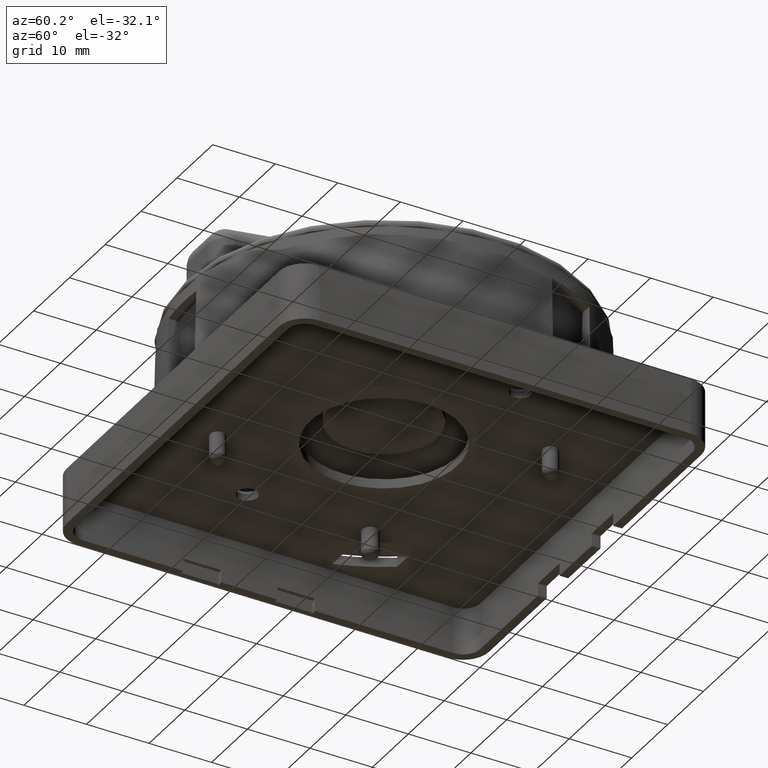
[diagram: clean part render]
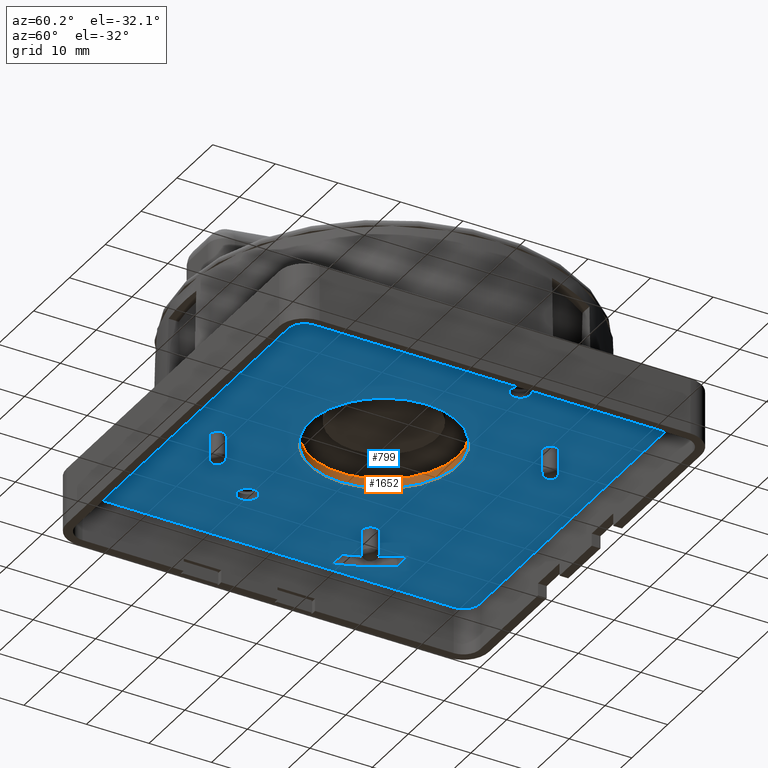
[diagram: same view with the hole feature highlighted: cylindrical wall and planar end face, labeled with their STEP entity ids]
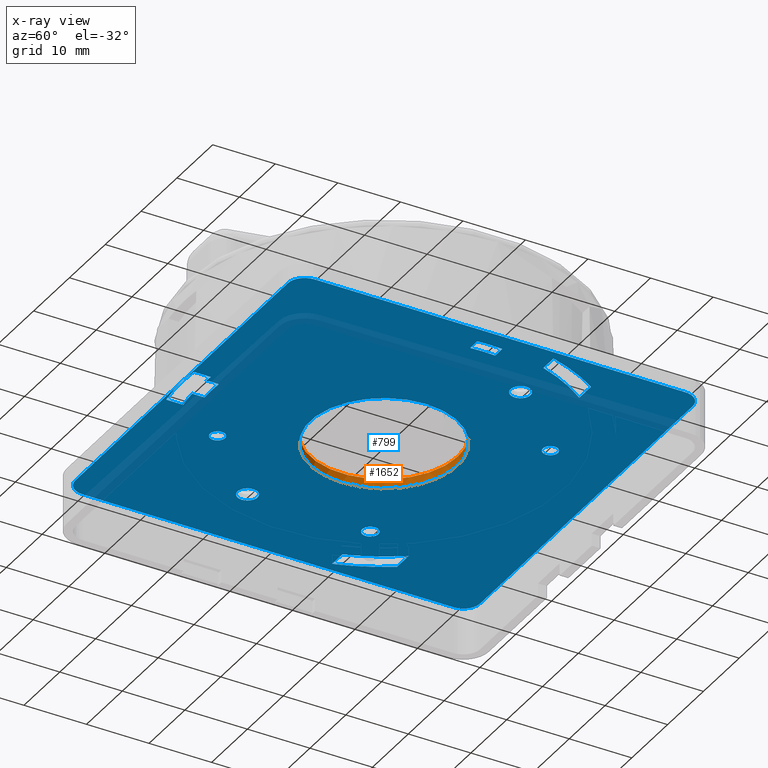
[diagram: x-ray of the same camera — body ghosted, the hole faces saturated]
A machine part, auxiliary view. The highlighted faces form one hole feature of diameter 23.6 mm: the cylindrical wall (entity #1652, orange) and its adjacent planar end face (entity #799, blue) — they share a circular edge in the B-rep.
The next image is the same camera in x-ray (body ghosted, the hole faces saturated) — the bore reads through the body.
Wall:
#788=CARTESIAN_POINT('',(123.48807423814603,116.51422582001801,57.5));
#789=VERTEX_POINT('',#788);
#790=CARTESIAN_POINT('',(111.68807423814602,116.51422582001801,57.5));
#791=DIRECTION('',(0.0,0.0,1.0));
#792=DIRECTION('',(1.0,0.0,0.0));
#793=AXIS2_PLACEMENT_3D('',#790,#791,#792);
#794=CIRCLE('',#793,11.800000000000001);
#795=EDGE_CURVE('',#789,#789,#794,.T.);
#886=CARTESIAN_POINT('',(111.68807423814602,128.31422582001801,59.0));
#887=VERTEX_POINT('',#886);
#888=CARTESIAN_POINT('',(111.68807423814602,116.51422582001801,59.0));
#889=DIRECTION('',(0.0,0.0,1.0));
#890=DIRECTION('',(0.0,1.0,0.0));
#891=AXIS2_PLACEMENT_3D('',#888,#889,#890);
#892=CIRCLE('',#891,11.800000000000001);
#893=EDGE_CURVE('',#887,#887,#892,.T.);
#1641=CARTESIAN_POINT('',(111.68807423814602,116.51422582001801,54.0));
#1642=DIRECTION('',(0.0,0.0,1.0));
#1643=DIRECTION('',(1.0,0.0,0.0));
#1644=AXIS2_PLACEMENT_3D('',#1641,#1642,#1643);
#1645=CYLINDRICAL_SURFACE('',#1644,11.800000000000001);
#1646=ORIENTED_EDGE('',*,*,#893,.T.);
#1647=EDGE_LOOP('',(#1646));
#1648=FACE_OUTER_BOUND('',#1647,.T.);
#1649=ORIENTED_EDGE('',*,*,#795,.F.);
#1650=EDGE_LOOP('',(#1649));
#1651=FACE_BOUND('',#1650,.T.);
#1652=ADVANCED_FACE('',(#1648,#1651),#1645,.F.);
End face:
#131=CARTESIAN_POINT('',(79.338074238147499,146.16422533444398,57.5));
#132=VERTEX_POINT('',#131);
#139=CARTESIAN_POINT('',(79.338074238145992,86.864226305594087,57.5));
#140=VERTEX_POINT('',#139);
#141=CARTESIAN_POINT('',(79.338074238146206,86.864226305594087,57.5));
#142=DIRECTION('',(0.0,1.0,0.0));
#143=VECTOR('',#142,59.299999028849896);
#144=LINE('',#141,#143);
#145=EDGE_CURVE('',#140,#132,#144,.T.);
#489=CARTESIAN_POINT('',(82.038074723723525,146.16422533444398,57.5));
#490=DIRECTION('',(0.0,0.0,1.0));
#491=DIRECTION('',(1.0,0.0,0.0));
#492=AXIS2_PLACEMENT_3D('',#489,#490,#491);
#493=PLANE('',#492);
#494=CARTESIAN_POINT('',(82.038074723722204,148.86422582001802,57.5));
#495=VERTEX_POINT('',#494);
#496=CARTESIAN_POINT('',(141.33807375256998,148.86422582001802,57.5));
#497=VERTEX_POINT('',#496);
#498=CARTESIAN_POINT('',(82.038074723722204,148.86422582001802,57.5));
#499=DIRECTION('',(1.0,0.0,0.0));
#500=VECTOR('',#499,59.299999028847779);
#501=LINE('',#498,#500);
#502=EDGE_CURVE('',#495,#497,#501,.T.);
#503=ORIENTED_EDGE('',*,*,#502,.T.);
#504=CARTESIAN_POINT('',(144.03807423814601,146.16422533444199,57.5));
#505=VERTEX_POINT('',#504);
#506=CARTESIAN_POINT('',(141.338073752572,146.16422533444302,57.5));
#507=DIRECTION('',(0.0,0.0,-1.0));
#508=DIRECTION('',(1.0,0.0,0.0));
#509=AXIS2_PLACEMENT_3D('',#506,#507,#508);
#510=CIRCLE('',#509,2.70000048557599);
#511=EDGE_CURVE('',#497,#505,#510,.T.);
#512=ORIENTED_EDGE('',*,*,#511,.T.);
#513=CARTESIAN_POINT('',(144.038074238147,86.8642263055944,57.5));
#514=VERTEX_POINT('',#513);
#515=CARTESIAN_POINT('',(144.03807423814601,146.16422533444199,57.5));
#516=DIRECTION('',(0.0,-1.0,0.0));
#517=VECTOR('',#516,59.299999028847608);
#518=LINE('',#515,#517);
#519=EDGE_CURVE('',#505,#514,#518,.T.);
#520=ORIENTED_EDGE('',*,*,#519,.T.);
#521=CARTESIAN_POINT('',(141.33807375256998,84.164225820017919,57.5));
#522=VERTEX_POINT('',#521);
#523=CARTESIAN_POINT('',(141.33807375256998,86.864226305594485,57.5));
#524=DIRECTION('',(0.0,0.0,-1.0));
#525=DIRECTION('',(0.0,-1.0,0.0));
#526=AXIS2_PLACEMENT_3D('',#523,#524,#525);
#527=CIRCLE('',#526,2.70000048557612);
#528=EDGE_CURVE('',#514,#522,#527,.T.);
#529=ORIENTED_EDGE('',*,*,#528,.T.);
#530=CARTESIAN_POINT('',(82.038074723721394,84.164225820016497,57.5));
#531=VERTEX_POINT('',#530);
#532=CARTESIAN_POINT('',(141.33807375256998,84.164225820017919,57.5));
#533=DIRECTION('',(-1.0,0.0,0.0));
#534=VECTOR('',#533,59.299999028848603);
#535=LINE('',#532,#534);
#536=EDGE_CURVE('',#522,#531,#535,.T.);
#537=ORIENTED_EDGE('',*,*,#536,.T.);
#538=CARTESIAN_POINT('',(82.038074723721209,86.864226305592624,57.5));
#539=DIRECTION('',(0.0,0.0,-1.0));
#540=DIRECTION('',(-1.0,0.0,0.0));
#541=AXIS2_PLACEMENT_3D('',#538,#539,#540);
#542=CIRCLE('',#541,2.70000048557606);
#543=EDGE_CURVE('',#531,#140,#542,.T.);
#544=ORIENTED_EDGE('',*,*,#543,.T.);
#545=ORIENTED_EDGE('',*,*,#145,.T.);
#546=CARTESIAN_POINT('',(82.038074723723525,146.16422533444398,57.5));
#547=DIRECTION('',(0.0,0.0,-1.0));
#548=DIRECTION('',(0.0,1.0,0.0));
#549=AXIS2_PLACEMENT_3D('',#546,#547,#548);
#550=CIRCLE('',#549,2.70000048557607);
#551=EDGE_CURVE('',#132,#495,#550,.T.);
#552=ORIENTED_EDGE('',*,*,#551,.T.);
#553=EDGE_LOOP('',(#503,#512,#520,#529,#537,#544,#545,#552));
#554=FACE_OUTER_BOUND('',#553,.T.);
#555=CARTESIAN_POINT('',(92.288074238146123,106.71422582001803,57.5));
#556=VERTEX_POINT('',#555);
#557=CARTESIAN_POINT('',(90.688074238146115,106.71422582001803,57.5));
#558=DIRECTION('',(0.0,0.0,-1.0));
#559=DIRECTION('',(1.0,0.0,0.0));
#560=AXIS2_PLACEMENT_3D('',#557,#558,#559);
#561=CIRCLE('',#560,1.6);
#562=EDGE_CURVE('',#556,#556,#561,.T.);
#563=ORIENTED_EDGE('',*,*,#562,.F.);
#564=EDGE_LOOP('',(#563));
#565=FACE_BOUND('',#564,.T.);
#566=CARTESIAN_POINT('',(142.590016001268,125.914225568354,57.5));
#567=VERTEX_POINT('',#566);
#568=CARTESIAN_POINT('',(138.77183337270304,134.11422556835501,57.5));
#569=VERTEX_POINT('',#568);
#570=CARTESIAN_POINT('',(111.688074238148,116.51422582001901,57.5));
#571=DIRECTION('',(0.0,0.0,1.0));
#572=DIRECTION('',(1.0,0.0,0.0));
#573=AXIS2_PLACEMENT_3D('',#570,#571,#572);
#574=CIRCLE('',#573,32.300000000000196);
#575=EDGE_CURVE('',#567,#569,#574,.T.);
#576=ORIENTED_EDGE('',*,*,#575,.T.);
#577=CARTESIAN_POINT('',(135.48723407328902,134.11422556835501,57.5));
#578=VERTEX_POINT('',#577);
#579=CARTESIAN_POINT('',(138.77183337270304,134.11422556835501,57.5));
#580=DIRECTION('',(-1.0,0.0,0.0));
#581=VECTOR('',#580,3.284599299413998);
#582=LINE('',#579,#581);
#583=EDGE_CURVE('',#569,#578,#582,.T.);
#584=ORIENTED_EDGE('',*,*,#583,.T.);
#585=CARTESIAN_POINT('',(139.75584943910201,125.91422556835502,57.5));
#586=VERTEX_POINT('',#585);
#587=CARTESIAN_POINT('',(111.688074238148,116.51422582001901,57.5));
#588=DIRECTION('',(0.0,0.0,-1.0));
#589=DIRECTION('',(1.0,0.0,0.0));
#590=AXIS2_PLACEMENT_3D('',#587,#588,#589);
#591=CIRCLE('',#590,29.599999999999802);
#592=EDGE_CURVE('',#578,#586,#591,.T.);
#593=ORIENTED_EDGE('',*,*,#592,.T.);
#594=CARTESIAN_POINT('',(139.75584943910201,125.91422556836001,57.5));
#595=DIRECTION('',(1.0,0.0,0.0));
#596=VECTOR('',#595,2.83416656216599);
#597=LINE('',#594,#596);
#598=EDGE_CURVE('',#586,#567,#597,.T.);
#599=ORIENTED_EDGE('',*,*,#598,.T.);
#600=EDGE_LOOP('',(#576,#584,#593,#599));
#601=FACE_BOUND('',#600,.T.);
#602=CARTESIAN_POINT('',(84.60431510359291,134.11422556835501,57.5));
#603=VERTEX_POINT('',#602);
#604=CARTESIAN_POINT('',(80.7861324750276,125.91422556835502,57.5));
#605=VERTEX_POINT('',#604);
#606=CARTESIAN_POINT('',(111.688074238148,116.51422582001901,57.5));
#607=DIRECTION('',(0.0,0.0,1.0));
#608=DIRECTION('',(1.0,0.0,0.0));
#609=AXIS2_PLACEMENT_3D('',#606,#607,#608);
#610=CIRCLE('',#609,32.299999999999898);
#611=EDGE_CURVE('',#603,#605,#610,.T.);
#612=ORIENTED_EDGE('',*,*,#611,.T.);
#613=CARTESIAN_POINT('',(83.620299037193888,125.91422556835502,57.5));
#614=VERTEX_POINT('',#613);
#615=CARTESIAN_POINT('',(80.7861324750276,125.91422556835502,57.5));
#616=DIRECTION('',(1.0,0.0,0.0));
#617=VECTOR('',#616,2.834166562166288);
#618=LINE('',#615,#617);
#619=EDGE_CURVE('',#605,#614,#618,.T.);
#620=ORIENTED_EDGE('',*,*,#619,.T.);
#621=CARTESIAN_POINT('',(87.888914403007107,134.11422556835501,57.5));
#622=VERTEX_POINT('',#621);
#623=CARTESIAN_POINT('',(111.688074238148,116.51422582001901,57.5));
#624=DIRECTION('',(0.0,0.0,-1.0));
#625=DIRECTION('',(1.0,0.0,0.0));
#626=AXIS2_PLACEMENT_3D('',#623,#624,#625);
#627=CIRCLE('',#626,29.599999999999902);
#628=EDGE_CURVE('',#614,#622,#627,.T.);
#629=ORIENTED_EDGE('',*,*,#628,.T.);
#630=CARTESIAN_POINT('',(87.888914403007107,134.11422556835501,57.5));
#631=DIRECTION('',(-1.0,0.0,0.0));
#632=VECTOR('',#631,3.284599299414197);
#633=LINE('',#630,#632);
#634=EDGE_CURVE('',#622,#603,#633,.T.);
#635=ORIENTED_EDGE('',*,*,#634,.T.);
#636=EDGE_LOOP('',(#612,#620,#629,#635));
#637=FACE_BOUND('',#636,.T.);
#638=CARTESIAN_POINT('',(101.88807423814602,96.714225820017901,57.5));
#639=VERTEX_POINT('',#638);
#640=CARTESIAN_POINT('',(101.88807423814602,95.514225820017913,57.5));
#641=DIRECTION('',(0.0,0.0,-1.0));
#642=DIRECTION('',(0.0,1.0,0.0));
#643=AXIS2_PLACEMENT_3D('',#640,#641,#642);
#644=CIRCLE('',#643,1.2);
#645=EDGE_CURVE('',#639,#639,#644,.T.);
#646=ORIENTED_EDGE('',*,*,#645,.F.);
#647=EDGE_LOOP('',(#646));
#648=FACE_BOUND('',#647,.T.);
#649=CARTESIAN_POINT('',(90.718691238438524,127.630389262622,57.5));
#650=VERTEX_POINT('',#649);
#651=CARTESIAN_POINT('',(90.718691238438524,126.33038926262201,57.5));
#652=DIRECTION('',(0.0,0.0,-1.0));
#653=DIRECTION('',(0.0,1.0,0.0));
#654=AXIS2_PLACEMENT_3D('',#651,#652,#653);
#655=CIRCLE('',#654,1.30000000000004);
#656=EDGE_CURVE('',#650,#650,#655,.T.);
#657=ORIENTED_EDGE('',*,*,#656,.F.);
#658=EDGE_LOOP('',(#657));
#659=FACE_BOUND('',#658,.T.);
#660=CARTESIAN_POINT('',(121.48807423814603,138.71422582001802,57.5));
#661=VERTEX_POINT('',#660);
#662=CARTESIAN_POINT('',(121.48807423814603,137.514225820018,57.5));
#663=DIRECTION('',(0.0,0.0,-1.0));
#664=DIRECTION('',(0.0,1.0,0.0));
#665=AXIS2_PLACEMENT_3D('',#662,#663,#664);
#666=CIRCLE('',#665,1.2);
#667=EDGE_CURVE('',#661,#661,#666,.T.);
#668=ORIENTED_EDGE('',*,*,#667,.F.);
#669=EDGE_LOOP('',(#668));
#670=FACE_BOUND('',#669,.T.);
#671=CARTESIAN_POINT('',(139.23298479249405,114.51422582001902,57.5));
#672=VERTEX_POINT('',#671);
#673=CARTESIAN_POINT('',(139.23298479249405,118.51422582001902,57.5));
#674=VERTEX_POINT('',#673);
#675=CARTESIAN_POINT('',(111.68807423814602,116.51422582001901,57.5));
#676=DIRECTION('',(0.0,0.0,1.0));
#677=DIRECTION('',(1.0,0.0,0.0));
#678=AXIS2_PLACEMENT_3D('',#675,#676,#677);
#679=CIRCLE('',#678,27.617423801777701);
#680=EDGE_CURVE('',#672,#674,#679,.T.);
#681=ORIENTED_EDGE('',*,*,#680,.F.);
#682=CARTESIAN_POINT('',(141.2204293762,114.51422582001902,57.5));
#683=VERTEX_POINT('',#682);
#684=CARTESIAN_POINT('',(141.2204293762,114.51422582001902,57.5));
#685=DIRECTION('',(-1.0,0.0,0.0));
#686=VECTOR('',#685,1.98744458370598);
#687=LINE('',#684,#686);
#688=EDGE_CURVE('',#683,#672,#687,.T.);
#689=ORIENTED_EDGE('',*,*,#688,.F.);
#690=CARTESIAN_POINT('',(141.2204293762,118.51422582001902,57.5));
#691=VERTEX_POINT('',#690);
#692=CARTESIAN_POINT('',(111.68807423815103,116.51422582001901,57.5));
#693=DIRECTION('',(0.0,0.0,-1.0));
#694=DIRECTION('',(1.0,0.0,0.0));
#695=AXIS2_PLACEMENT_3D('',#692,#693,#694);
#696=CIRCLE('',#695,29.599999999997003);
#697=EDGE_CURVE('',#691,#683,#696,.T.);
#698=ORIENTED_EDGE('',*,*,#697,.F.);
#699=CARTESIAN_POINT('',(139.23298479249405,118.51422582001902,57.5));
#700=DIRECTION('',(1.0,0.0,0.0));
#701=VECTOR('',#700,1.98744458370598);
#702=LINE('',#699,#701);
#703=EDGE_CURVE('',#674,#691,#702,.T.);
#704=ORIENTED_EDGE('',*,*,#703,.F.);
#705=EDGE_LOOP('',(#681,#689,#698,#704));
#706=FACE_BOUND('',#705,.T.);
#707=CARTESIAN_POINT('',(106.55594364666499,87.362532314489997,57.5));
#708=VERTEX_POINT('',#707);
#709=CARTESIAN_POINT('',(106.55732081327102,84.624331350248298,57.5));
#710=VERTEX_POINT('',#709);
#711=CARTESIAN_POINT('',(106.55594364666541,87.362532314489997,57.5));
#712=DIRECTION('',(0.000502945711263,-0.999999873522798,0.0));
#713=VECTOR('',#712,2.73820131056174);
#714=LINE('',#711,#713);
#715=EDGE_CURVE('',#708,#710,#714,.T.);
#716=ORIENTED_EDGE('',*,*,#715,.T.);
#717=CARTESIAN_POINT('',(114.75732674941845,84.36038172414122,57.5));
#718=VERTEX_POINT('',#717);
#719=CARTESIAN_POINT('',(111.68807430699999,116.51422583108,57.5));
#720=DIRECTION('',(0.0,0.0,1.0));
#721=DIRECTION('',(1.0,0.0,0.0));
#722=AXIS2_PLACEMENT_3D('',#719,#720,#721);
#723=CIRCLE('',#722,32.300000021857599);
#724=EDGE_CURVE('',#710,#718,#723,.T.);
#725=ORIENTED_EDGE('',*,*,#724,.T.);
#726=CARTESIAN_POINT('',(114.75732674849901,87.073782739130905,57.5));
#727=VERTEX_POINT('',#726);
#728=CARTESIAN_POINT('',(114.75732674849901,84.36038172414122,57.5));
#729=DIRECTION('',(0.0,1.0,0.0));
#730=VECTOR('',#729,2.713401014989685);
#731=LINE('',#728,#730);
#732=EDGE_CURVE('',#718,#727,#731,.T.);
#733=ORIENTED_EDGE('',*,*,#732,.T.);
#734=CARTESIAN_POINT('',(113.68807423814901,86.981870688366797,57.5));
#735=VERTEX_POINT('',#734);
#736=CARTESIAN_POINT('',(111.68807430700301,116.514225831044,57.5));
#737=DIRECTION('',(0.0,0.0,-1.0));
#738=DIRECTION('',(1.0,0.0,0.0));
#739=AXIS2_PLACEMENT_3D('',#736,#737,#738);
#740=CIRCLE('',#739,29.599999999962904);
#741=EDGE_CURVE('',#727,#735,#740,.T.);
#742=ORIENTED_EDGE('',*,*,#741,.T.);
#743=CARTESIAN_POINT('',(113.68807423814901,88.969315265672805,57.5));
#744=VERTEX_POINT('',#743);
#745=CARTESIAN_POINT('',(113.68807423814901,86.981870688366797,57.5));
#746=DIRECTION('',(0.0,1.0,0.0));
#747=VECTOR('',#746,1.987444577306007);
#748=LINE('',#745,#747);
#749=EDGE_CURVE('',#735,#744,#748,.T.);
#750=ORIENTED_EDGE('',*,*,#749,.T.);
#751=CARTESIAN_POINT('',(109.68807423802201,88.964647111358403,57.5));
#752=VERTEX_POINT('',#751);
#753=CARTESIAN_POINT('',(111.65594864524401,116.49442837991302,57.5));
#754=DIRECTION('',(0.0,0.0,-1.0));
#755=DIRECTION('',(1.0,0.0,0.0));
#756=AXIS2_PLACEMENT_3D('',#753,#754,#755);
#757=CIRCLE('',#756,27.600025115515201);
#758=EDGE_CURVE('',#744,#752,#757,.T.);
#759=ORIENTED_EDGE('',*,*,#758,.T.);
#760=CARTESIAN_POINT('',(109.68807423814802,86.981870697692315,57.5));
#761=VERTEX_POINT('',#760);
#762=CARTESIAN_POINT('',(109.68807423802215,88.964647111358403,57.5));
#763=DIRECTION('',(6.339344E-011,-1.0,0.0));
#764=VECTOR('',#763,1.982776413666088);
#765=LINE('',#762,#764);
#766=EDGE_CURVE('',#752,#761,#765,.T.);
#767=ORIENTED_EDGE('',*,*,#766,.T.);
#768=CARTESIAN_POINT('',(111.68807430699999,116.51422583107703,57.5));
#769=DIRECTION('',(0.0,0.0,-1.0));
#770=DIRECTION('',(1.0,0.0,0.0));
#771=AXIS2_PLACEMENT_3D('',#768,#769,#770);
#772=CIRCLE('',#771,29.599999999996399);
#773=EDGE_CURVE('',#761,#708,#772,.T.);
#774=ORIENTED_EDGE('',*,*,#773,.T.);
#775=EDGE_LOOP('',(#716,#725,#733,#742,#750,#759,#767,#774));
#776=FACE_BOUND('',#775,.T.);
#777=CARTESIAN_POINT('',(134.288074238147,126.31422582001902,57.5));
#778=VERTEX_POINT('',#777);
#779=CARTESIAN_POINT('',(132.68807423814701,126.31422582001902,57.5));
#780=DIRECTION('',(0.0,0.0,-1.0));
#781=DIRECTION('',(1.0,0.0,0.0));
#782=AXIS2_PLACEMENT_3D('',#779,#780,#781);
#783=CIRCLE('',#782,1.59999999999998);
#784=EDGE_CURVE('',#778,#778,#783,.T.);
#785=ORIENTED_EDGE('',*,*,#784,.F.);
#786=EDGE_LOOP('',(#785));
#787=FACE_BOUND('',#786,.T.);
#788=CARTESIAN_POINT('',(123.48807423814603,116.51422582001801,57.5));
#789=VERTEX_POINT('',#788);
#790=CARTESIAN_POINT('',(111.68807423814602,116.51422582001801,57.5));
#791=DIRECTION('',(0.0,0.0,1.0));
#792=DIRECTION('',(1.0,0.0,0.0));
#793=AXIS2_PLACEMENT_3D('',#790,#791,#792);
#794=CIRCLE('',#793,11.800000000000001);
#795=EDGE_CURVE('',#789,#789,#794,.T.);
#796=ORIENTED_EDGE('',*,*,#795,.T.);
#797=EDGE_LOOP('',(#796));
#798=FACE_BOUND('',#797,.T.);
#799=ADVANCED_FACE('',(#554,#565,#601,#637,#648,#659,#670,#706,#776,#787,#798),#493,.F.);